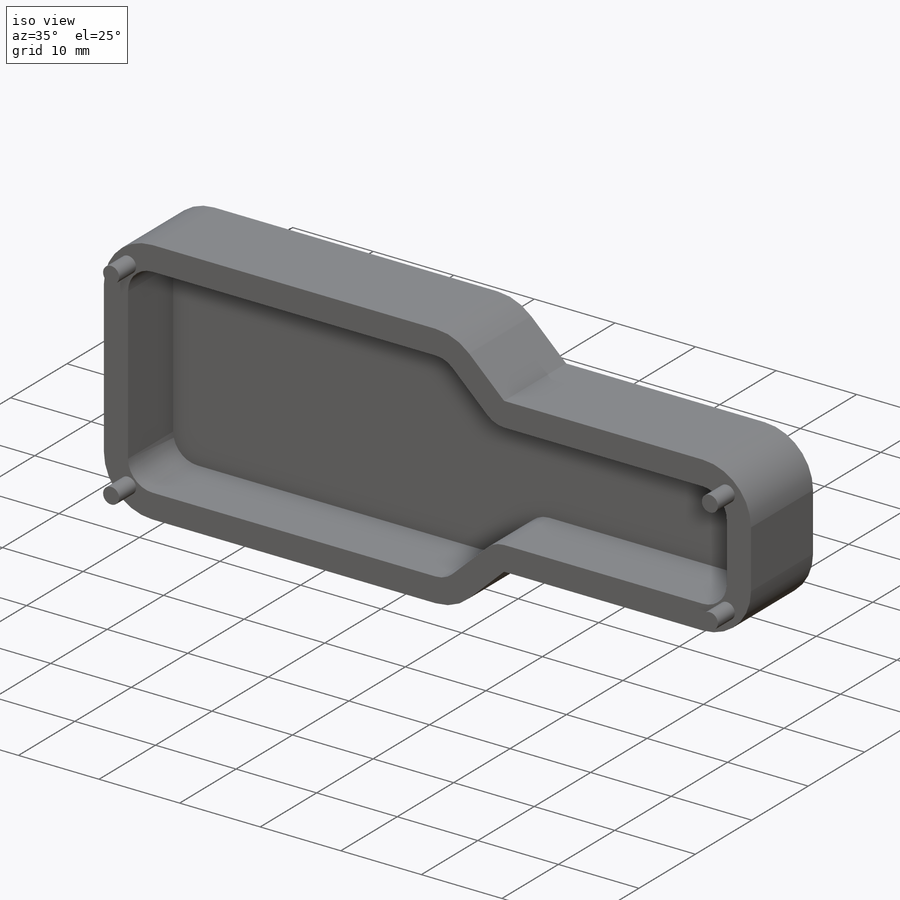
[diagram: iso view]
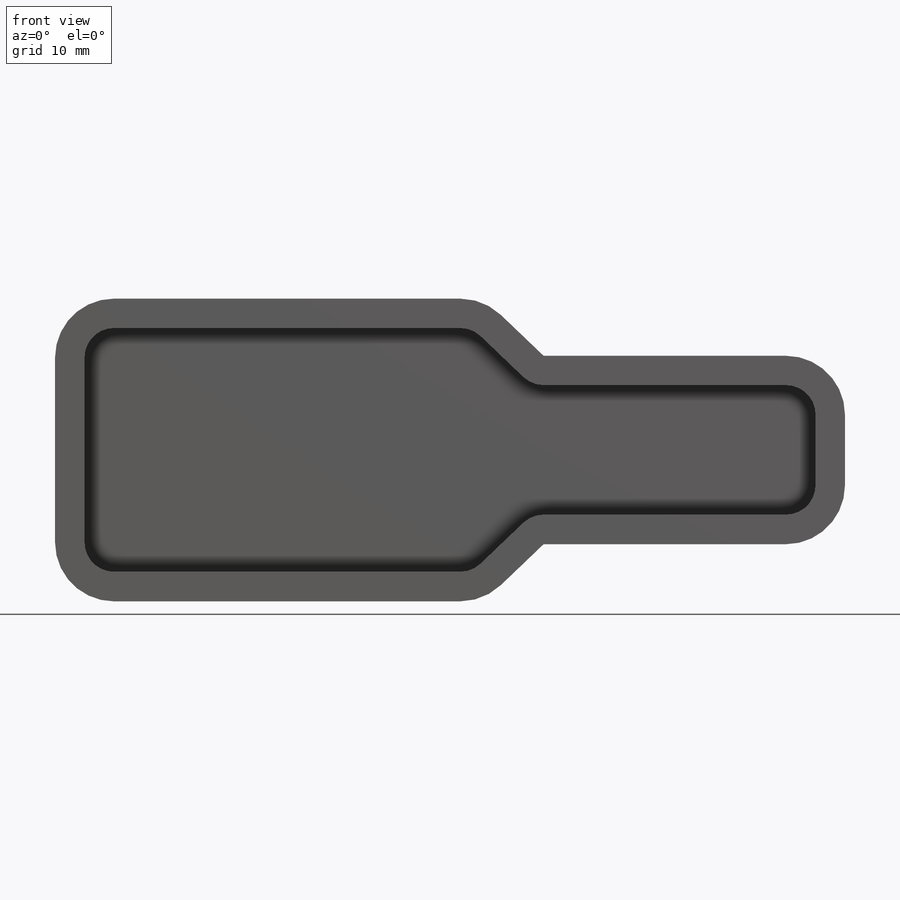
[diagram: front view]
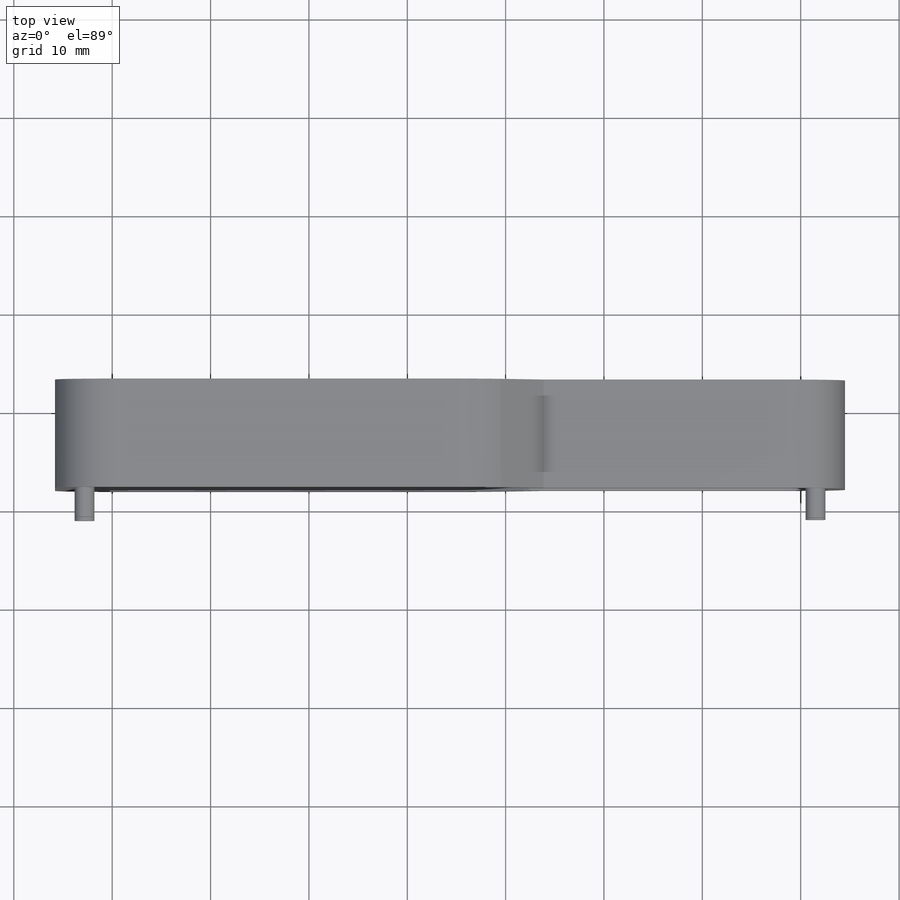
[diagram: top view]
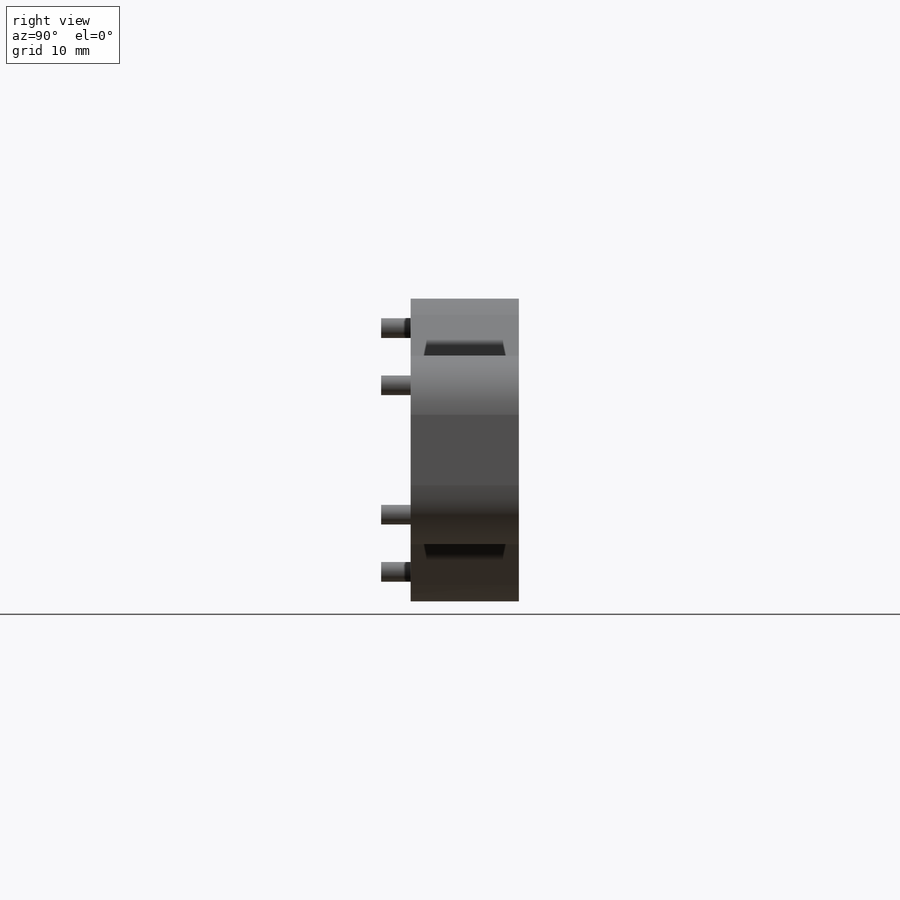
[diagram: right view]
SOLIDWORKS PART (.sldprt)
format: sldprt  version: not decoded by parser v0  size: 318,976 bytes
history: native  units: mm
features: sketch x4, extrude x3, material x1 (+11 scaffold rows collapsed)
feature tree (19):
  scaffold x11  (default folders/planes/origin — collapsed)
  material  "Material <not specified>"
  sketch  "Sketch2"  dims[c1.D1=7.0mm c1.D2=2.0mm c1.D3=2.0mm c1.D10=2.0mm c1.D5=4.4mm c1.D7=7.0mm c1.D4=28.0mm c2.D5=32.0mm c2.D6=18.0mm c2.D7=9.7mm c2.D9=0.0mm c2.D2=10.16mm c2.D3=5.08mm c2.D4=2.54mm c3.D3=2.0mm c3.D2=10.16mm c3.D4=~3.288647mm c3.D5=2.0mm c3.D1=2.0mm c4.D2=2.0mm c4.D4=2.0mm c4.D6=0.0mm c4.D8=1.0mm]
  sketch  "Sketch3"  dims[D5=3.0mm D6=2.0mm D1=1.5mm D2=1.5mm D3=1.5mm D4=1.5mm D7=3.0mm]
  extrude  "Boss-Extrude2"  Depth=8mm
  sketch  "Sketch5"  dims[D1=0.0mm]
  extrude  "Boss-Extrude3"  Depth=3mm
  sketch  "Sketch7"
  extrude  "Boss-Extrude4"  Depth=11mm
decode coverage: 6 of 7 modeling features carry decoded parameters
note: ~ marks probable driven/reference dimensions
note: suppression state not decoded; provenance and decode notes live in map.json
